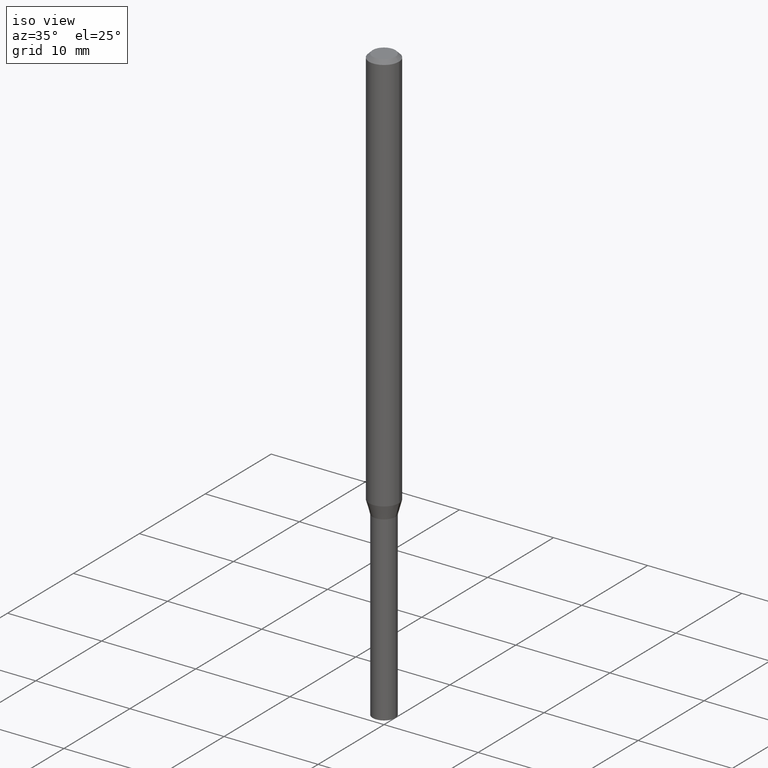
[diagram: clean part render]
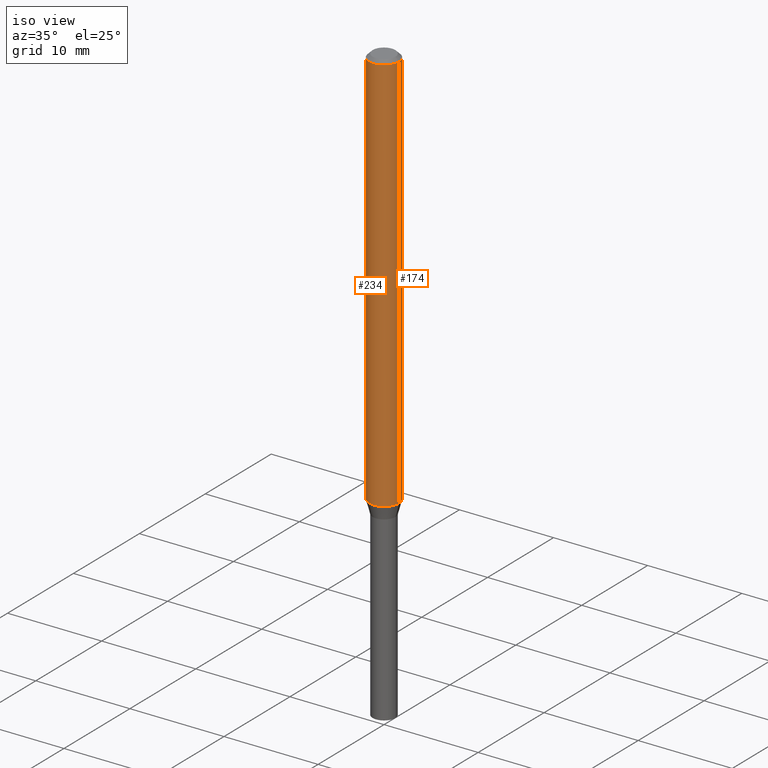
[diagram: same view with one multi-face feature highlighted, each face labeled with its STEP entity id]
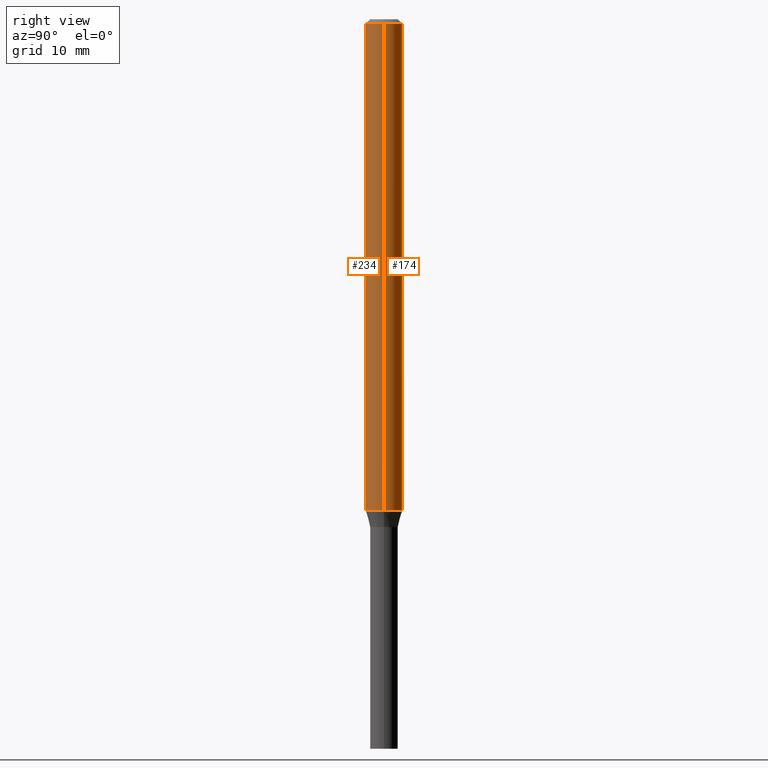
[diagram: same view with one multi-face feature highlighted, each face labeled with its STEP entity id]
A machine part, iso view. The highlighted faces form ONE feature: a constant-radius fillet chain: 2 tangent blend faces with common blend radius 1.5875 mm. The faces share edges in the B-rep.
A second angle (right view) of the same feature is appended — it is thin or edge-on in the first view.
Their STEP definitions:
[1] entity #174 (Cylinder):
#7 = CARTESIAN_POINT ( 'NONE',  ( 3.668203209277705088E-31, -5.237222008264718399E-17, -0.01499999999999999944 ) ) ;
#14 = EDGE_CURVE ( 'NONE', #300, #344, #377, .T. ) ;
#41 = DIRECTION ( 'NONE',  ( -2.445468806185136877E-29, 3.491481338843145188E-15, 1.000000000000000000 ) ) ;
#53 = DIRECTION ( 'NONE',  ( 1.000000000000000000, -6.982962677686262766E-15, 0.000000000000000000 ) ) ;
#68 = DIRECTION ( 'NONE',  ( -2.445468806185136877E-29, 3.491481338843145188E-15, 1.000000000000000000 ) ) ;
#74 = AXIS2_PLACEMENT_3D ( 'NONE', #390, #276, #93 ) ;
#93 = DIRECTION ( 'NONE',  ( 1.000000000000000000, -6.982962677686266711E-15, 4.876176775795935793E-29 ) ) ;
#103 = CYLINDRICAL_SURFACE ( 'NONE', #74, 0.06250000000000000000 ) ;
#113 = VECTOR ( 'NONE', #41, 39.37007874015748143 ) ;
#127 = EDGE_LOOP ( 'NONE', ( #222, #449, #410, #314 ) ) ;
#132 = VECTOR ( 'NONE', #68, 39.37007874015748143 ) ;
#144 = CARTESIAN_POINT ( 'NONE',  ( 0.06250000000000000000, -4.364351673553916694E-16, 3.047610484872459871E-30 ) ) ;
#145 = DIRECTION ( 'NONE',  ( -2.445468806185136597E-29, 3.491481338843145583E-15, 1.000000000000000000 ) ) ;
#163 = EDGE_CURVE ( 'NONE', #344, #187, #248, .T. ) ;
#165 = FACE_OUTER_BOUND ( 'NONE', #127, .T. ) ;
#174 = ADVANCED_FACE ( 'NONE', ( #165 ), #103, .T. ) ;
#187 = VERTEX_POINT ( 'NONE', #347 ) ;
#193 = CARTESIAN_POINT ( 'NONE',  ( -0.06250000000000000000, -5.435632533483387962E-15, -1.684019237886465570 ) ) ;
#222 = ORIENTED_EDGE ( 'NONE', *, *, #14, .T. ) ;
#242 = AXIS2_PLACEMENT_3D ( 'NONE', #7, #145, #430 ) ;
#248 = LINE ( 'NONE', #388, #132 ) ;
#251 = CIRCLE ( 'NONE', #242, 0.06250000000000000000 ) ;
#260 = CARTESIAN_POINT ( 'NONE',  ( 0.06250000000000000000, -6.316156910688842248E-15, -1.684019237886465570 ) ) ;
#270 = EDGE_CURVE ( 'NONE', #300, #275, #440, .T. ) ;
#272 = CARTESIAN_POINT ( 'NONE',  ( 4.118216515267018389E-29, -5.879721743333449789E-15, -1.684019237886465570 ) ) ;
#275 = VERTEX_POINT ( 'NONE', #304 ) ;
#276 = DIRECTION ( 'NONE',  ( -2.445468806185136597E-29, 3.491481338843145583E-15, 1.000000000000000000 ) ) ;
#293 = EDGE_CURVE ( 'NONE', #275, #187, #251, .T. ) ;
#300 = VERTEX_POINT ( 'NONE', #260 ) ;
#304 = CARTESIAN_POINT ( 'NONE',  ( 0.06250000000000000000, -4.888073874380388472E-16, -0.01499999999999999944 ) ) ;
#314 = ORIENTED_EDGE ( 'NONE', *, *, #270, .F. ) ;
#344 = VERTEX_POINT ( 'NONE', #193 ) ;
#347 = CARTESIAN_POINT ( 'NONE',  ( -0.06250000000000000000, -2.521957771857986410E-15, -0.01499999999999999944 ) ) ;
#377 = CIRCLE ( 'NONE', #448, 0.06250000000000000000 ) ;
#388 = CARTESIAN_POINT ( 'NONE',  ( -0.06250000000000000000, 4.440892098500626162E-16, -3.074334431409316114E-30 ) ) ;
#390 = CARTESIAN_POINT ( 'NONE',  ( 0.000000000000000000, 0.000000000000000000, 0.000000000000000000 ) ) ;
#410 = ORIENTED_EDGE ( 'NONE', *, *, #293, .F. ) ;
#412 = DIRECTION ( 'NONE',  ( -2.445468806185136597E-29, 3.491481338843145583E-15, 1.000000000000000000 ) ) ;
#430 = DIRECTION ( 'NONE',  ( 1.000000000000000000, -6.982962677686266711E-15, 0.000000000000000000 ) ) ;
#440 = LINE ( 'NONE', #144, #113 ) ;
#448 = AXIS2_PLACEMENT_3D ( 'NONE', #272, #412, #53 ) ;
#449 = ORIENTED_EDGE ( 'NONE', *, *, #163, .T. ) ;
[2] entity #234 (Cylinder):
#5 = CARTESIAN_POINT ( 'NONE',  ( 0.000000000000000000, 0.000000000000000000, 0.000000000000000000 ) ) ;
#6 = ORIENTED_EDGE ( 'NONE', *, *, #35, .F. ) ;
#26 = CARTESIAN_POINT ( 'NONE',  ( 3.668203209277705088E-31, -5.237222008264718399E-17, -0.01499999999999999944 ) ) ;
#35 = EDGE_CURVE ( 'NONE', #187, #275, #455, .T. ) ;
#36 = EDGE_LOOP ( 'NONE', ( #78, #328, #48, #6 ) ) ;
#41 = DIRECTION ( 'NONE',  ( -2.445468806185136877E-29, 3.491481338843145188E-15, 1.000000000000000000 ) ) ;
#48 = ORIENTED_EDGE ( 'NONE', *, *, #270, .T. ) ;
#66 = AXIS2_PLACEMENT_3D ( 'NONE', #405, #317, #195 ) ;
#68 = DIRECTION ( 'NONE',  ( -2.445468806185136877E-29, 3.491481338843145188E-15, 1.000000000000000000 ) ) ;
#78 = ORIENTED_EDGE ( 'NONE', *, *, #163, .F. ) ;
#113 = VECTOR ( 'NONE', #41, 39.37007874015748143 ) ;
#132 = VECTOR ( 'NONE', #68, 39.37007874015748143 ) ;
#133 = DIRECTION ( 'NONE',  ( 1.000000000000000000, -6.982962677686266711E-15, 0.000000000000000000 ) ) ;
#144 = CARTESIAN_POINT ( 'NONE',  ( 0.06250000000000000000, -4.364351673553916694E-16, 3.047610484872459871E-30 ) ) ;
#163 = EDGE_CURVE ( 'NONE', #344, #187, #248, .T. ) ;
#169 = AXIS2_PLACEMENT_3D ( 'NONE', #5, #358, #183 ) ;
#183 = DIRECTION ( 'NONE',  ( 1.000000000000000000, -6.982962677686266711E-15, 4.876176775795935793E-29 ) ) ;
#187 = VERTEX_POINT ( 'NONE', #347 ) ;
#193 = CARTESIAN_POINT ( 'NONE',  ( -0.06250000000000000000, -5.435632533483387962E-15, -1.684019237886465570 ) ) ;
#195 = DIRECTION ( 'NONE',  ( 1.000000000000000000, -6.982962677686262766E-15, 0.000000000000000000 ) ) ;
#234 = ADVANCED_FACE ( 'NONE', ( #330 ), #299, .T. ) ;
#248 = LINE ( 'NONE', #388, #132 ) ;
#260 = CARTESIAN_POINT ( 'NONE',  ( 0.06250000000000000000, -6.316156910688842248E-15, -1.684019237886465570 ) ) ;
#270 = EDGE_CURVE ( 'NONE', #300, #275, #440, .T. ) ;
#275 = VERTEX_POINT ( 'NONE', #304 ) ;
#299 = CYLINDRICAL_SURFACE ( 'NONE', #169, 0.06250000000000000000 ) ;
#300 = VERTEX_POINT ( 'NONE', #260 ) ;
#304 = CARTESIAN_POINT ( 'NONE',  ( 0.06250000000000000000, -4.888073874380388472E-16, -0.01499999999999999944 ) ) ;
#317 = DIRECTION ( 'NONE',  ( -2.445468806185136597E-29, 3.491481338843145583E-15, 1.000000000000000000 ) ) ;
#328 = ORIENTED_EDGE ( 'NONE', *, *, #425, .T. ) ;
#330 = FACE_OUTER_BOUND ( 'NONE', #36, .T. ) ;
#344 = VERTEX_POINT ( 'NONE', #193 ) ;
#347 = CARTESIAN_POINT ( 'NONE',  ( -0.06250000000000000000, -2.521957771857986410E-15, -0.01499999999999999944 ) ) ;
#358 = DIRECTION ( 'NONE',  ( -2.445468806185136597E-29, 3.491481338843145583E-15, 1.000000000000000000 ) ) ;
#388 = CARTESIAN_POINT ( 'NONE',  ( -0.06250000000000000000, 4.440892098500626162E-16, -3.074334431409316114E-30 ) ) ;
#405 = CARTESIAN_POINT ( 'NONE',  ( 4.118216515267018389E-29, -5.879721743333449789E-15, -1.684019237886465570 ) ) ;
#411 = CIRCLE ( 'NONE', #66, 0.06250000000000000000 ) ;
#421 = DIRECTION ( 'NONE',  ( -2.445468806185136597E-29, 3.491481338843145583E-15, 1.000000000000000000 ) ) ;
#425 = EDGE_CURVE ( 'NONE', #344, #300, #411, .T. ) ;
#438 = AXIS2_PLACEMENT_3D ( 'NONE', #26, #421, #133 ) ;
#440 = LINE ( 'NONE', #144, #113 ) ;
#455 = CIRCLE ( 'NONE', #438, 0.06250000000000000000 ) ;